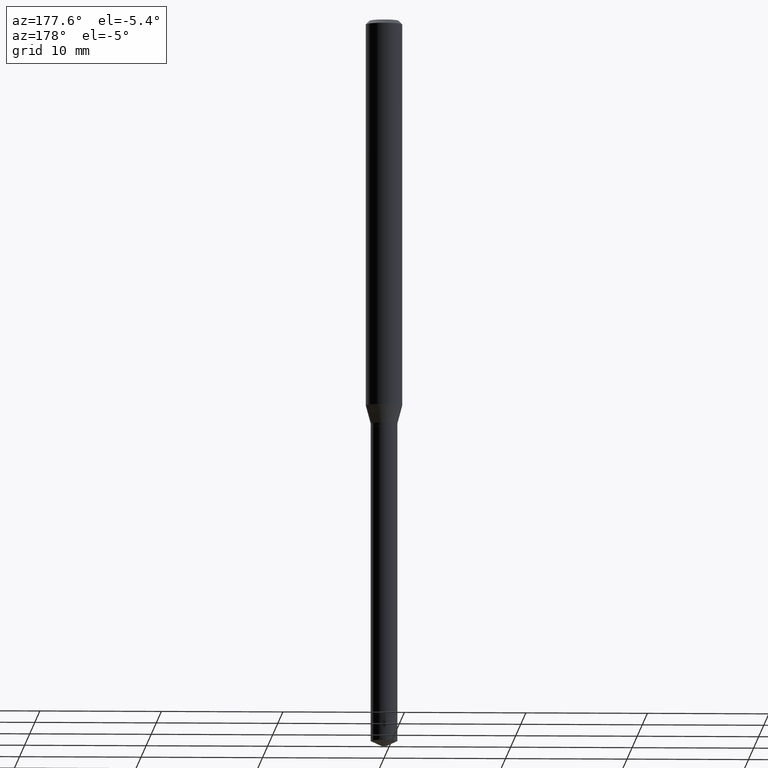
[diagram: clean part render]
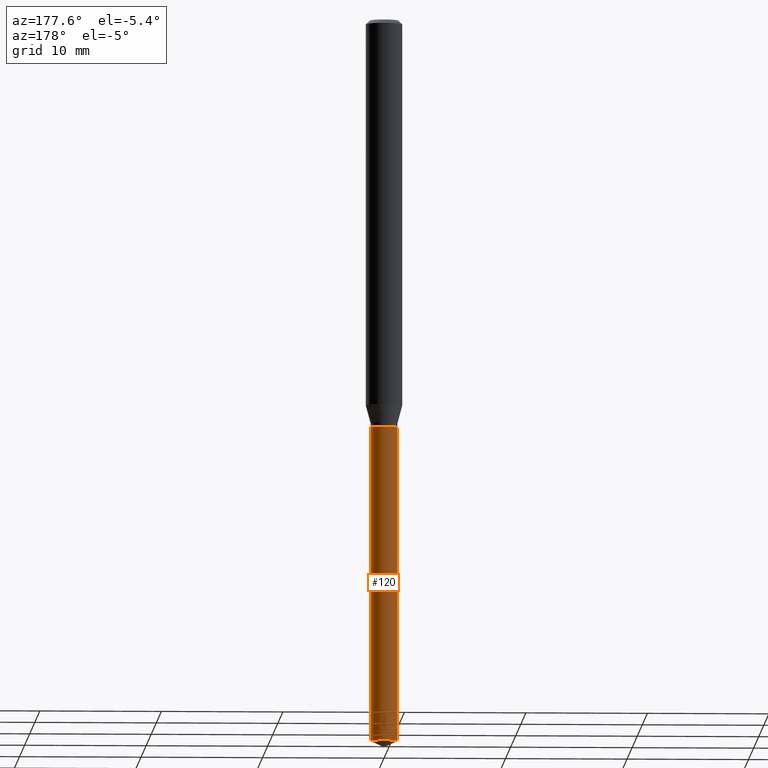
[diagram: same view with one face highlighted and labeled with its STEP entity id]
A machine part, auxiliary view. The second image highlights one B-rep face of the part: STEP entity #120.
In plain terms, the highlighted cylindrical surface (edge-blend (fillet) strip) has radius 1.0998 mm, axis along (-0, 0, 1).
Its self-contained STEP definition (entity closure, byte-faithful):
#2 = DIRECTION ( 'NONE',  ( -2.445468806185136597E-29, 3.491481338843145583E-15, 1.000000000000000000 ) ) ;
#41 = CARTESIAN_POINT ( 'NONE',  ( 0.04329999999999999127, -4.920893798965527531E-15, -1.322799999999999976 ) ) ;
#46 = AXIS2_PLACEMENT_3D ( 'NONE', #128, #47, #96 ) ;
#47 = DIRECTION ( 'NONE',  ( -2.445468806185136597E-29, 3.491481338843145583E-15, 1.000000000000000000 ) ) ;
#49 = EDGE_CURVE ( 'NONE', #276, #421, #392, .T. ) ;
#58 = EDGE_LOOP ( 'NONE', ( #423, #118, #97, #315 ) ) ;
#93 = CIRCLE ( 'NONE', #46, 0.04329999999999999127 ) ;
#95 = CARTESIAN_POINT ( 'NONE',  ( -0.04329999999999999127, -4.310866510437588651E-15, -1.322799999999999976 ) ) ;
#96 = DIRECTION ( 'NONE',  ( 1.000000000000000000, -6.982962677686269866E-15, 0.000000000000000000 ) ) ;
#97 = ORIENTED_EDGE ( 'NONE', *, *, #260, .F. ) ;
#109 = AXIS2_PLACEMENT_3D ( 'NONE', #320, #2, #490 ) ;
#110 = VERTEX_POINT ( 'NONE', #299 ) ;
#118 = ORIENTED_EDGE ( 'NONE', *, *, #49, .T. ) ;
#120 = ADVANCED_FACE ( 'NONE', ( #380 ), #292, .T. ) ;
#128 = CARTESIAN_POINT ( 'NONE',  ( 5.727309655940458271E-29, -8.177080294345160929E-15, -2.342008878401888872 ) ) ;
#156 = VECTOR ( 'NONE', #248, 39.37007874015748143 ) ;
#159 = CARTESIAN_POINT ( 'NONE',  ( -0.04330000000000000515, -7.869415289761038301E-15, -2.342008878401888872 ) ) ;
#218 = VECTOR ( 'NONE', #456, 39.37007874015748143 ) ;
#245 = CIRCLE ( 'NONE', #109, 0.04329999999999999127 ) ;
#248 = DIRECTION ( 'NONE',  ( -2.445468806185136877E-29, 3.491481338843145188E-15, 1.000000000000000000 ) ) ;
#257 = DIRECTION ( 'NONE',  ( -2.445468806185136597E-29, 3.491481338843145583E-15, 1.000000000000000000 ) ) ;
#260 = EDGE_CURVE ( 'NONE', #310, #421, #245, .T. ) ;
#276 = VERTEX_POINT ( 'NONE', #159 ) ;
#292 = CYLINDRICAL_SURFACE ( 'NONE', #467, 0.04329999999999999127 ) ;
#295 = EDGE_CURVE ( 'NONE', #110, #310, #425, .T. ) ;
#299 = CARTESIAN_POINT ( 'NONE',  ( 0.04330000000000000515, -8.479442578288976391E-15, -2.342008878401888872 ) ) ;
#310 = VERTEX_POINT ( 'NONE', #41 ) ;
#315 = ORIENTED_EDGE ( 'NONE', *, *, #295, .F. ) ;
#320 = CARTESIAN_POINT ( 'NONE',  ( 3.234866136821698001E-29, -4.618531515021712068E-15, -1.322799999999999976 ) ) ;
#375 = CARTESIAN_POINT ( 'NONE',  ( 3.234866136821698001E-29, -4.618531515021712068E-15, -1.322799999999999976 ) ) ;
#380 = FACE_OUTER_BOUND ( 'NONE', #58, .T. ) ;
#384 = CARTESIAN_POINT ( 'NONE',  ( 0.04329999999999999127, -4.920893798965527531E-15, -1.322799999999999976 ) ) ;
#392 = LINE ( 'NONE', #95, #156 ) ;
#408 = EDGE_CURVE ( 'NONE', #110, #276, #93, .T. ) ;
#411 = DIRECTION ( 'NONE',  ( 1.000000000000000000, -6.982962677686269866E-15, 0.000000000000000000 ) ) ;
#421 = VERTEX_POINT ( 'NONE', #432 ) ;
#423 = ORIENTED_EDGE ( 'NONE', *, *, #408, .T. ) ;
#425 = LINE ( 'NONE', #384, #218 ) ;
#432 = CARTESIAN_POINT ( 'NONE',  ( -0.04329999999999999127, -6.090140900099312687E-15, -1.322799999999999976 ) ) ;
#456 = DIRECTION ( 'NONE',  ( -2.445468806185136877E-29, 3.491481338843145188E-15, 1.000000000000000000 ) ) ;
#467 = AXIS2_PLACEMENT_3D ( 'NONE', #375, #257, #411 ) ;
#490 = DIRECTION ( 'NONE',  ( 1.000000000000000000, -6.982962677686269866E-15, 0.000000000000000000 ) ) ;